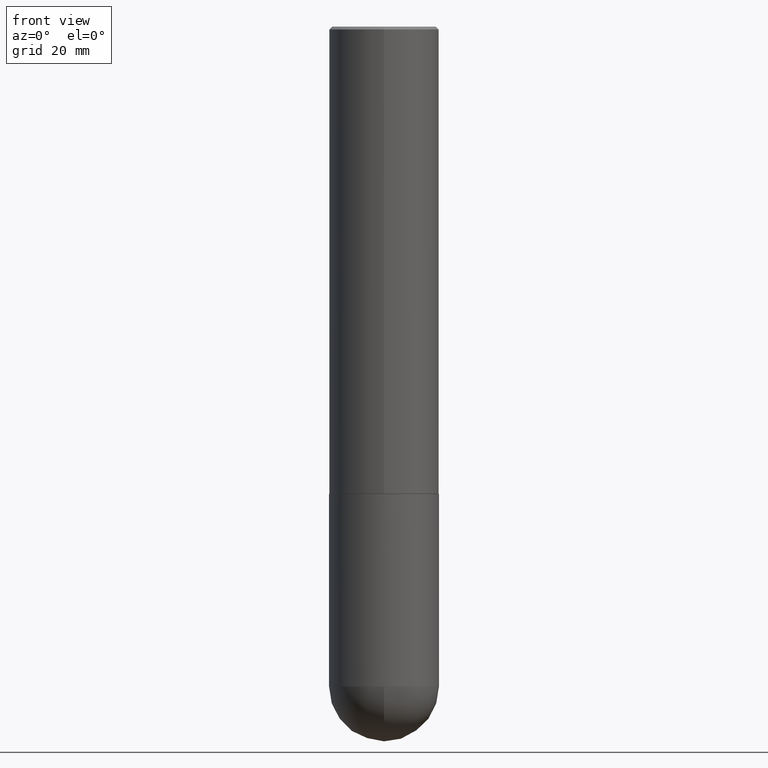
[diagram: clean part render]
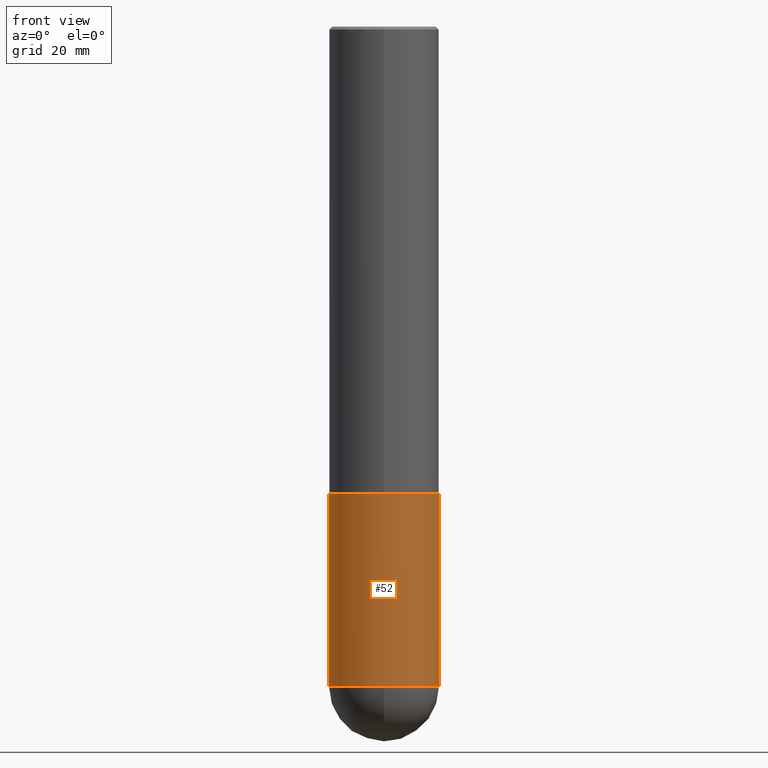
[diagram: same view with one face highlighted and labeled with its STEP entity id]
A machine part, front view. The second image highlights one B-rep face of the part: STEP entity #52.
In plain terms, the highlighted cylindrical surface (partial cylindrical patch) has radius 10 mm, axis along (-0, 0, 1).
Its self-contained STEP definition (entity closure, byte-faithful):
#4 = CYLINDRICAL_SURFACE ( 'NONE', #45, 0.3936999999999999389 ) ;
#12 = ORIENTED_EDGE ( 'NONE', *, *, #131, .T. ) ;
#18 = LINE ( 'NONE', #343, #247 ) ;
#19 = CARTESIAN_POINT ( 'NONE',  ( 1.155337282794106175E-28, -1.649515443723055925E-14, -4.724400000000000155 ) ) ;
#36 = ORIENTED_EDGE ( 'NONE', *, *, #311, .T. ) ;
#45 = AXIS2_PLACEMENT_3D ( 'NONE', #122, #359, #320 ) ;
#48 = DIRECTION ( 'NONE',  ( -2.445468806185136877E-29, 3.491481338843145188E-15, 1.000000000000000000 ) ) ;
#52 = ADVANCED_FACE ( 'NONE', ( #149 ), #4, .T. ) ;
#62 = EDGE_LOOP ( 'NONE', ( #354, #155, #36, #12, #142 ) ) ;
#72 = VERTEX_POINT ( 'NONE', #236 ) ;
#75 = DIRECTION ( 'NONE',  ( 1.000000000000000000, -6.982962677686265133E-15, 0.000000000000000000 ) ) ;
#88 = CARTESIAN_POINT ( 'NONE',  ( 0.3937000000000000499, -1.443308555850978615E-14, -3.346400000000000041 ) ) ;
#110 = DIRECTION ( 'NONE',  ( 1.000000000000000000, -6.982962677686267499E-15, 0.000000000000000000 ) ) ;
#114 = EDGE_CURVE ( 'NONE', #220, #230, #219, .T. ) ;
#119 = CARTESIAN_POINT ( 'NONE',  ( 0.3936999999999999389, -1.683871620097271747E-14, -4.724400000000000155 ) ) ;
#122 = CARTESIAN_POINT ( 'NONE',  ( 0.000000000000000000, 0.000000000000000000, 0.000000000000000000 ) ) ;
#131 = EDGE_CURVE ( 'NONE', #338, #340, #18, .T. ) ;
#142 = ORIENTED_EDGE ( 'NONE', *, *, #201, .F. ) ;
#149 = FACE_OUTER_BOUND ( 'NONE', #62, .T. ) ;
#150 = CARTESIAN_POINT ( 'NONE',  ( -0.3936999999999999389, 2.797406750687513998E-15, -1.936584745033356455E-29 ) ) ;
#155 = ORIENTED_EDGE ( 'NONE', *, *, #114, .T. ) ;
#181 = DIRECTION ( 'NONE',  ( -2.445468806185136877E-29, 3.491481338843145188E-15, 1.000000000000000000 ) ) ;
#184 = DIRECTION ( 'NONE',  ( 1.000000000000000000, -6.982962677686265133E-15, 0.000000000000000000 ) ) ;
#185 = CIRCLE ( 'NONE', #261, 0.3937000000000000499 ) ;
#186 = VECTOR ( 'NONE', #181, 39.37007874015748143 ) ;
#198 = AXIS2_PLACEMENT_3D ( 'NONE', #286, #333, #184 ) ;
#201 = EDGE_CURVE ( 'NONE', #72, #340, #185, .T. ) ;
#219 = CIRCLE ( 'NONE', #304, 0.3936999999999999389 ) ;
#220 = VERTEX_POINT ( 'NONE', #266 ) ;
#230 = VERTEX_POINT ( 'NONE', #234 ) ;
#234 = CARTESIAN_POINT ( 'NONE',  ( -2.797406750687401585E-15, -0.3937000000000168698, -4.724399999999999267 ) ) ;
#236 = CARTESIAN_POINT ( 'NONE',  ( -0.3937000000000000499, -1.129211704408011867E-14, -3.346400000000000041 ) ) ;
#247 = VECTOR ( 'NONE', #48, 39.37007874015748143 ) ;
#261 = AXIS2_PLACEMENT_3D ( 'NONE', #271, #268, #110 ) ;
#266 = CARTESIAN_POINT ( 'NONE',  ( -0.3936999999999999389, -1.129211704408012183E-14, -4.724400000000000155 ) ) ;
#268 = DIRECTION ( 'NONE',  ( -2.445468806185136597E-29, 3.491481338843145583E-15, 1.000000000000000000 ) ) ;
#271 = CARTESIAN_POINT ( 'NONE',  ( 8.183516813017942119E-29, -1.168389315230470294E-14, -3.346400000000000041 ) ) ;
#286 = CARTESIAN_POINT ( 'NONE',  ( 1.155337282794106175E-28, -1.649515443723055925E-14, -4.724400000000000155 ) ) ;
#304 = AXIS2_PLACEMENT_3D ( 'NONE', #19, #393, #75 ) ;
#311 = EDGE_CURVE ( 'NONE', #230, #338, #400, .T. ) ;
#315 = EDGE_CURVE ( 'NONE', #220, #72, #384, .T. ) ;
#320 = DIRECTION ( 'NONE',  ( 1.000000000000000000, -6.982962677686266711E-15, 4.876176775795935793E-29 ) ) ;
#333 = DIRECTION ( 'NONE',  ( -2.445468806185136597E-29, 3.491481338843145583E-15, 1.000000000000000000 ) ) ;
#338 = VERTEX_POINT ( 'NONE', #119 ) ;
#340 = VERTEX_POINT ( 'NONE', #88 ) ;
#343 = CARTESIAN_POINT ( 'NONE',  ( 0.3936999999999999389, -2.749192406205082822E-15, 1.919750796630859611E-29 ) ) ;
#354 = ORIENTED_EDGE ( 'NONE', *, *, #315, .F. ) ;
#359 = DIRECTION ( 'NONE',  ( -2.445468806185136597E-29, 3.491481338843145583E-15, 1.000000000000000000 ) ) ;
#384 = LINE ( 'NONE', #150, #186 ) ;
#393 = DIRECTION ( 'NONE',  ( -2.445468806185136597E-29, 3.491481338843145583E-15, 1.000000000000000000 ) ) ;
#400 = CIRCLE ( 'NONE', #198, 0.3936999999999999389 ) ;